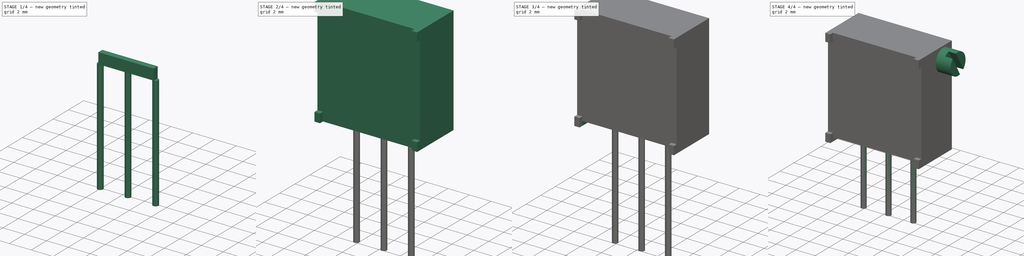
[diagram: build sequence overview — one tinted view per stage of 4, left to right]
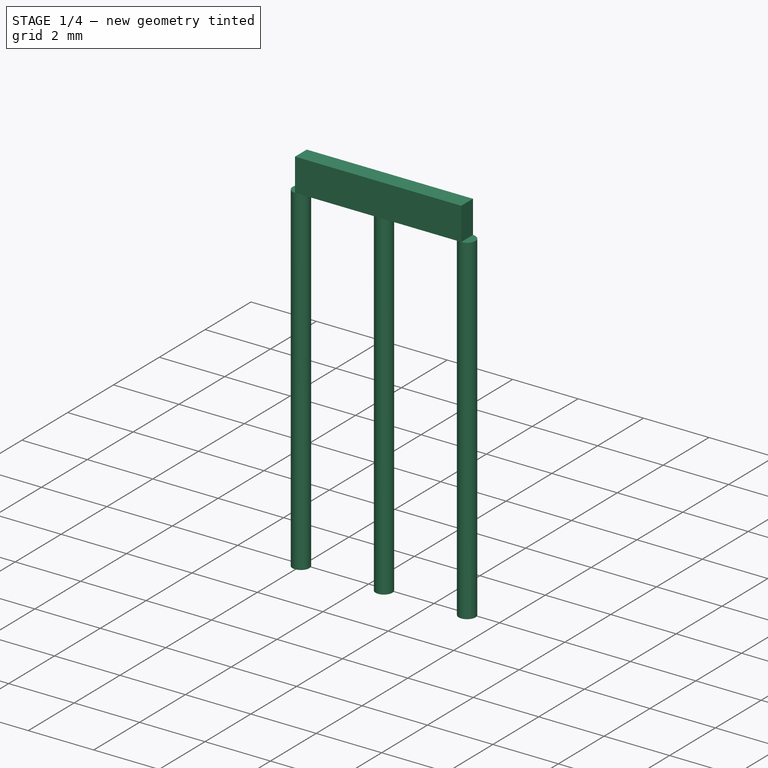
[diagram: stage 1 of 4 — iso view after this stage's code; geometry added in this stage tinted green]
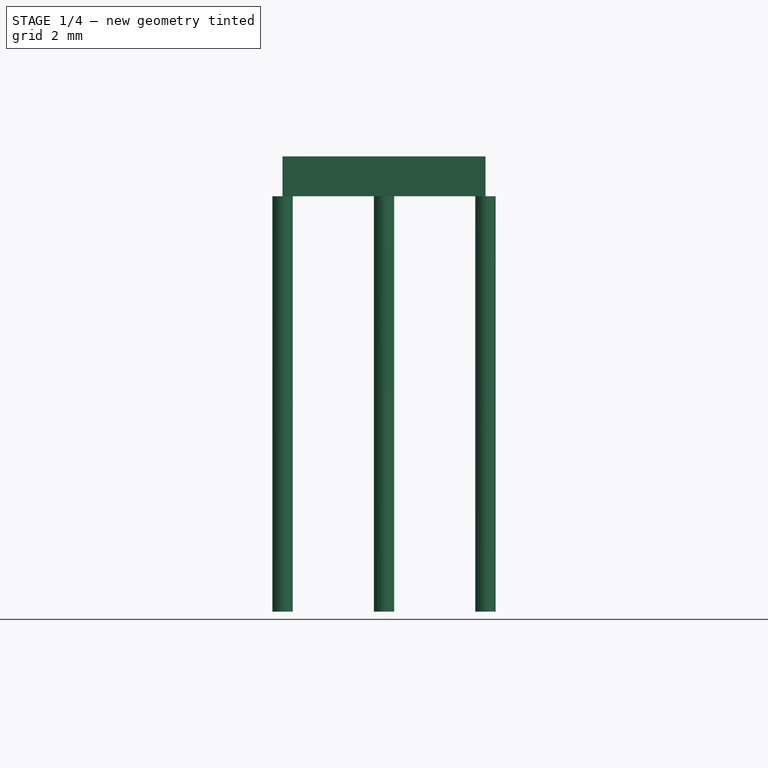
[diagram: stage 1 of 4 — front view after this stage's code; geometry added in this stage tinted green]
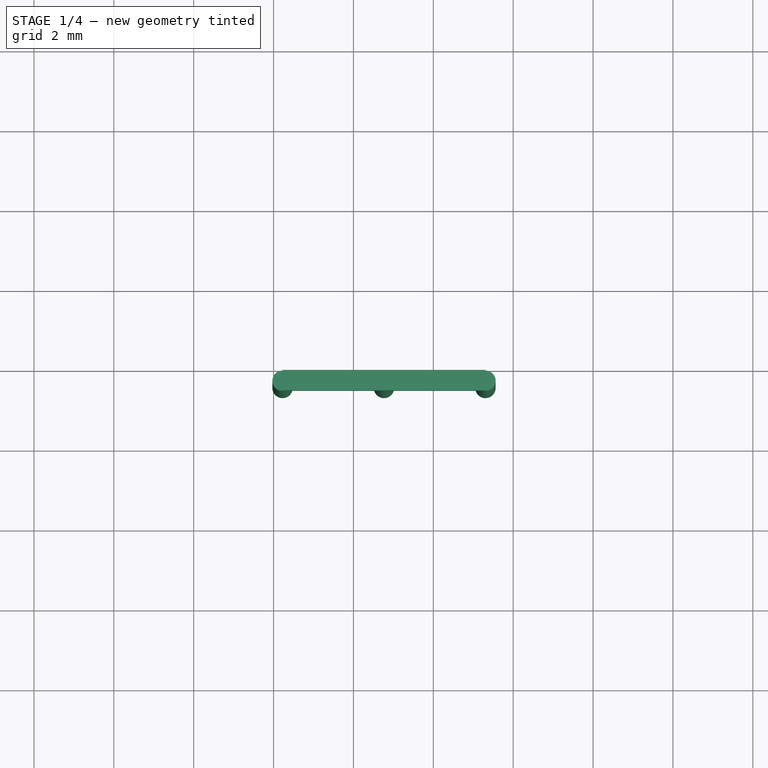
[diagram: stage 1 of 4 — top view after this stage's code; geometry added in this stage tinted green]
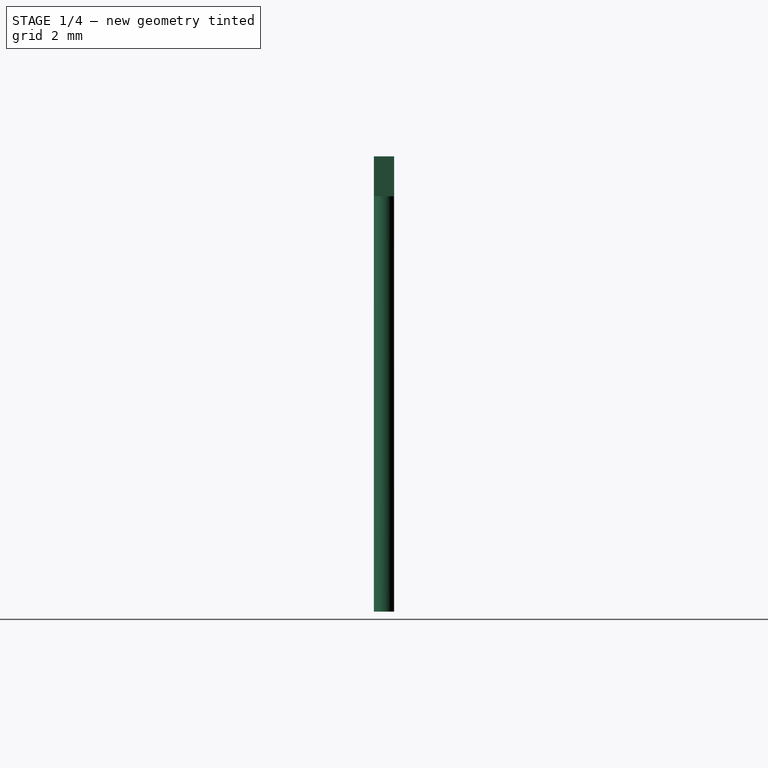
[diagram: stage 1 of 4 — right view after this stage's code; geometry added in this stage tinted green]
FCSTD DOCUMENT  (FreeCAD 0.21R33771 (Git))
Label: BOURNS-3296X_20240509c
License: All rights reserved
LicenseURL: http://fr.wikipedia.org/wiki/<copyright redacted>
objects: Sketcher::SketchObject×7, PartDesign::Pad×4, PartDesign::Pocket×4, PartDesign::Body×3, Spreadsheet::Sheet×1, Part::Part2DObjectPython×1, Part::Compound×1
note: 28 computed .brp shape members not serialized (recipe doc carries the construction recipe); baked Part::Feature solids carry a one-line shape summary decoded from their .brp

FEATURE [PartDesign::Body] Body  label="MainBody"
  Group = -> [Sketch,Pad,Sketch001,Pocket001,Sketch005,Pocket002,ShapeString,Pocket003]
  Origin = -> Origin
  Tip = -> Pocket003
FEATURE [Sketcher::SketchObject] Sketch006  label="BaseSketch"
  FullyConstrained = true
  MapMode = 5
  Support = -> [XY_Plane002]
  expr: Constraints[10] = Spreadsheet.pin_spacing * 2
  expr: Constraints[11] = Spreadsheet.length / 2
  expr: Constraints[12] = Spreadsheet.total_width - Spreadsheet.pin_y
  expr: Constraints[9] = Spreadsheet.pin_diameter
  sketch-geometry (5):
    g0: LineSegment StartX=7.305 StartY=-2.675 StartZ=0 EndX=7.305 EndY=-2.165 EndZ=0
    g1: LineSegment StartX=7.305 StartY=-2.165 StartZ=0 EndX=2.225 EndY=-2.165 EndZ=0
    g2: LineSegment StartX=2.225 StartY=-2.165 StartZ=0 EndX=2.225 EndY=-2.675 EndZ=0
    g3: LineSegment StartX=2.225 StartY=-2.675 StartZ=0 EndX=7.305 EndY=-2.675 EndZ=0
    g4: GeomPoint X=4.765 Y=-2.42 Z=0
  constraints (13):
    c: Coincident(g0,g1)
    c: Coincident(g1,g2)
    c: Coincident(g2,g3)
    c: Coincident(g3,g0)
    c: Horizontal(g1)
    c: Horizontal(g3)
    c: Vertical(g0)
    c: Vertical(g2)
    c: Symmetric(g1,g0,g4)
    c: DistanceY(g0,g0) = 0.51
    c: DistanceX(g1,g1) = 5.08
    c: DistanceX(g-1,g4) = 4.765
    c: DistanceY(g4,g-1) = 2.42
FEATURE [PartDesign::Pad] Pad003  label="BasePad"
  Direction = (0,0,1)
  Length = 1
  Length2 = 10
  Profile = -> Sketch006
  ReferenceAxis = -> Sketch006 [N_Axis]
  Type = 0
FEATURE [Sketcher::SketchObject] Sketch007  label="PinsSketch"
  FullyConstrained = true
  MapMode = 5
  Support = -> [XY_Plane002]
  expr: Constraints[0] = Spreadsheet.pin_spacing
  expr: Constraints[1] = Spreadsheet.pin_spacing
  expr: Constraints[4] = Spreadsheet.pin_diameter
  expr: Constraints[7] = Spreadsheet.length / 2
  expr: Constraints[8] = Spreadsheet.total_width - Spreadsheet.pin_y
  sketch-geometry (3):
    g0: Circle CenterX=4.765 CenterY=-2.42 CenterZ=0 NormalX=0 NormalY=0 NormalZ=1 AngleXU=0 Radius=0.255
    g1: Circle CenterX=2.225 CenterY=-2.42 CenterZ=0 NormalX=0 NormalY=0 NormalZ=1 AngleXU=0 Radius=0.255
    g2: Circle CenterX=7.305 CenterY=-2.42 CenterZ=0 NormalX=0 NormalY=0 NormalZ=1 AngleXU=0 Radius=0.255
  constraints (9):
    c: DistanceX(g1,g0) = 2.54
    c: DistanceX(g0,g2) = 2.54
    c: Horizontal(g1,g0)
    c: Horizontal(g0,g2)
    c: Diameter(g1) = 0.51
    c: Equal(g1,g0)
    c: Equal(g0,g2)
    c: DistanceX(g-1,g0) = 4.765
    c: DistanceY(g0,g-1) = 2.42
FEATURE [PartDesign::Pad] Pad004  label="PinsPad"
  BaseFeature = -> Pad003
  Direction = (0,0,1)
  Length = 10.4
  Length2 = 10
  Profile = -> Sketch007
  ReferenceAxis = -> Sketch007 [N_Axis]
  Reversed = true
  Type = 0
  expr: Length = Spreadsheet.pin_length + Spreadsheet.pin_base_z * 2
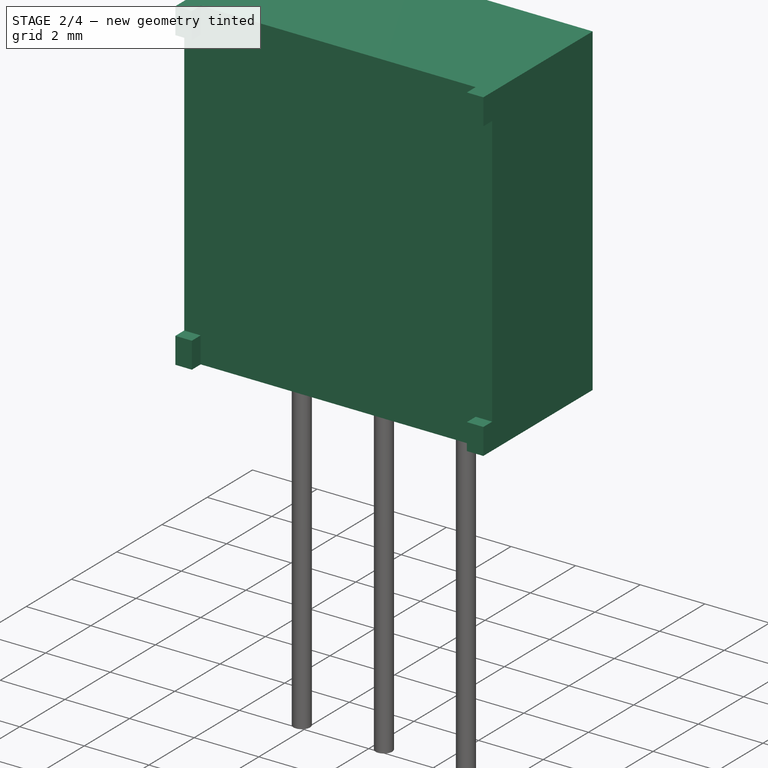
[diagram: stage 2 of 4 — iso view after this stage's code; geometry added in this stage tinted green]
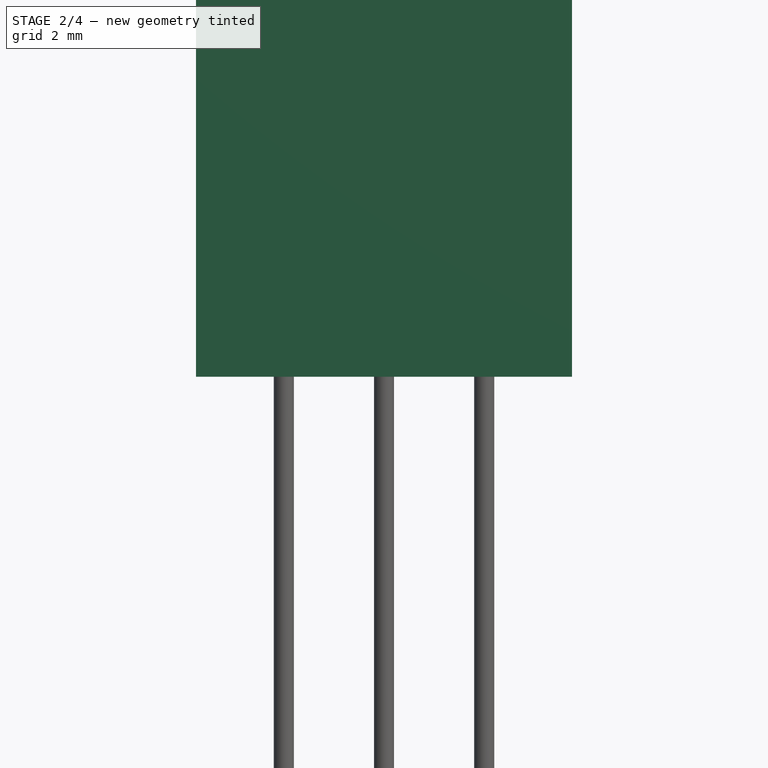
[diagram: stage 2 of 4 — front view after this stage's code; geometry added in this stage tinted green]
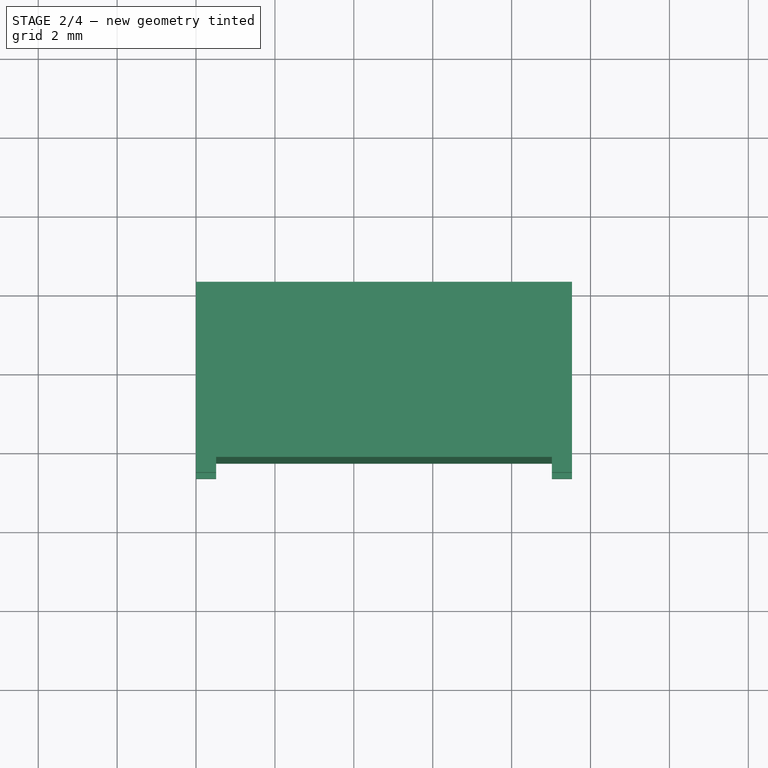
[diagram: stage 2 of 4 — top view after this stage's code; geometry added in this stage tinted green]
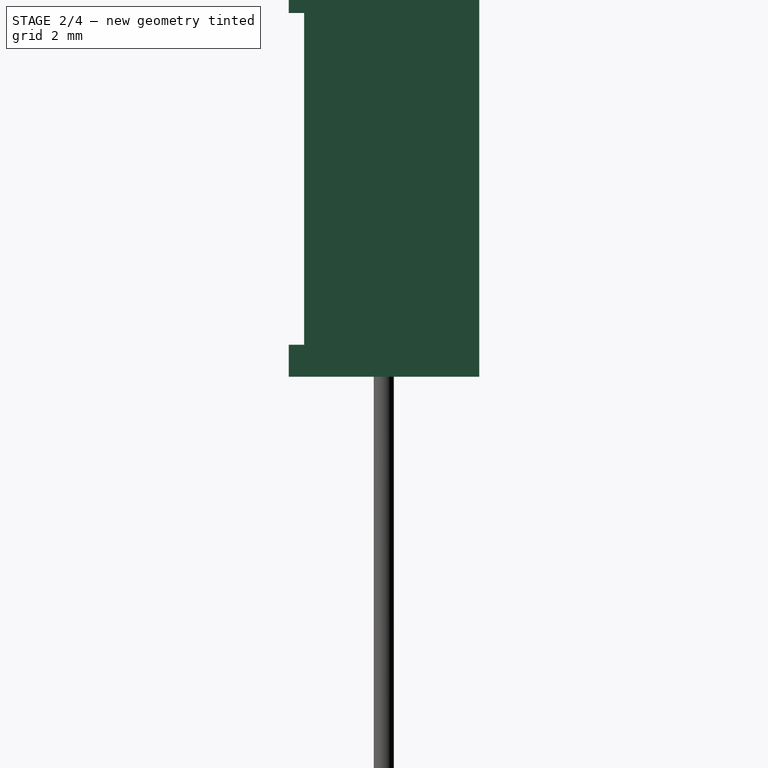
[diagram: stage 2 of 4 — right view after this stage's code; geometry added in this stage tinted green]
FEATURE [Sketcher::SketchObject] Sketch
  FullyConstrained = true
  MapMode = 5
  Placement = pos=(0,0,0) rot=(1,0,0;1.5708rad)
  Support = -> [XZ_Plane]
  expr: Constraints[10] = <<Spreadsheet>>.total_height
  expr: Constraints[9] = <<Spreadsheet>>.length
  sketch-geometry (4):
    g0: LineSegment StartX=0 StartY=0 StartZ=0 EndX=9.53 EndY=0 EndZ=0
    g1: LineSegment StartX=9.53 StartY=0 StartZ=0 EndX=9.53 EndY=10.03 EndZ=0
    g2: LineSegment StartX=9.53 StartY=10.03 StartZ=0 EndX=0 EndY=10.03 EndZ=0
    g3: LineSegment StartX=0 StartY=10.03 StartZ=0 EndX=0 EndY=0 EndZ=0
  constraints (11):
    c: Coincident(g0,g1)
    c: Coincident(g1,g2)
    c: Coincident(g2,g3)
    c: Coincident(g3,g0)
    c: Horizontal(g0)
    c: Horizontal(g2)
    c: Vertical(g1)
    c: Vertical(g3)
    c: Coincident(g0,g-1)
    c: DistanceX(g2,g2) = 9.53
    c: DistanceY(g3,g3) = 10.03
FEATURE [PartDesign::Pad] Pad  label="MainPad"
  AllowMultiFace = false
  Direction = (0,-1,-1.035e-13)
  Length = 4.83
  Length2 = 100
  Placement = pos=(0,0,0) rot=(1,0,0;1.5708rad)
  Profile = -> Sketch
  Type = 0
  expr: Length = <<Spreadsheet>>.total_width
FEATURE [PartDesign::Body] Body001  label="SetScrewBody"
  Group = -> [Sketch002,Pad002,Sketch003,Pocket]
  Origin = -> Origin001
  Placement = pos=(9.53,-1.27,8.76) rot=(0,1,0;1.5708rad)
  Tip = -> Pocket
  expr: .Placement.Base.x = Spreadsheet.length
  expr: .Placement.Base.z = Spreadsheet.total_height - Spreadsheet.screw_x
FEATURE [Spreadsheet::Sheet] Spreadsheet
  cells = A2='body; A3='length; B3(length)=9.53; A4='notch_protrusion; B4(notch_protrusion)==B6 - B5; D4='TBC; A5='width; B5(width)=4.44; D5='TBC; A6='total_width; B6(total_width)=4.83; A8='height; B8(height)==B10 - B9; A9='bottom_notch; B9(bottom_notch)=0.38; A10='total_height; B10(total_height)=10.03; A12='notch_width; B12(notch_width)=0.51; D12='TBC; A13='notch_height; B13(notch_height)=0.81; D13='TBC; A15='Set Screw; A16='screw_diameter; B16(screw_diameter)=2.19; A17='screw_protrusion; B17(screw_protrusion)=1.52; A18='screw_slot_width; B18(screw_slot_width)=0.56; A19='screw_slot_depth; B19(screw_slot_depth)=0.76; A20='screw_y; B20(screw_y)=1.27; A21='screw_x; B21(screw_x)=1.27; A23='Pins; A24='pin_y; B24(pin_y)=2.41; A25='pin_x; B25(pin_x)=0; A26='pin_spacing; B26(pin_spacing)=2.54; A27='pin_diameter; B27(pin_diameter)=0.51; A28='pin_length; B28(pin_length)=6.4; A29='pin_base_z; B29(pin_base_z)=2
FEATURE [PartDesign::Pocket] Pocket001  label="SidePocket001"
  BaseFeature = -> Pad
  Direction = (0,1,1.035e-13)
  Length = 0.39
  Length2 = 5
  Placement = pos=(0,0,0) rot=(1,0,0;1.5708rad)
  Profile = -> Sketch001
  ReferenceAxis = -> Sketch001 [N_Axis]
  Type = 0
  expr: Length = <<Spreadsheet>>.notch_protrusion
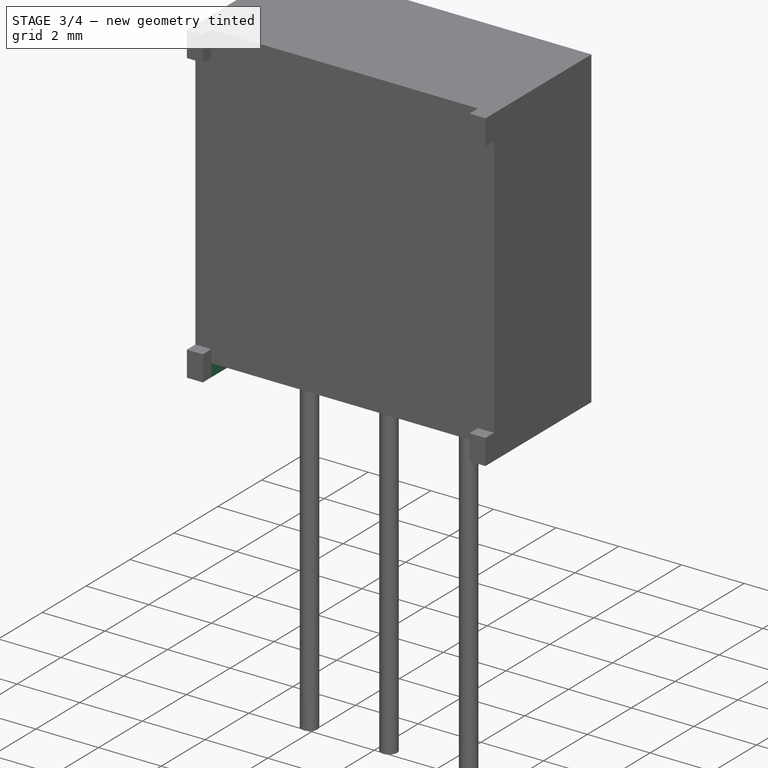
[diagram: stage 3 of 4 — iso view after this stage's code; geometry added in this stage tinted green]
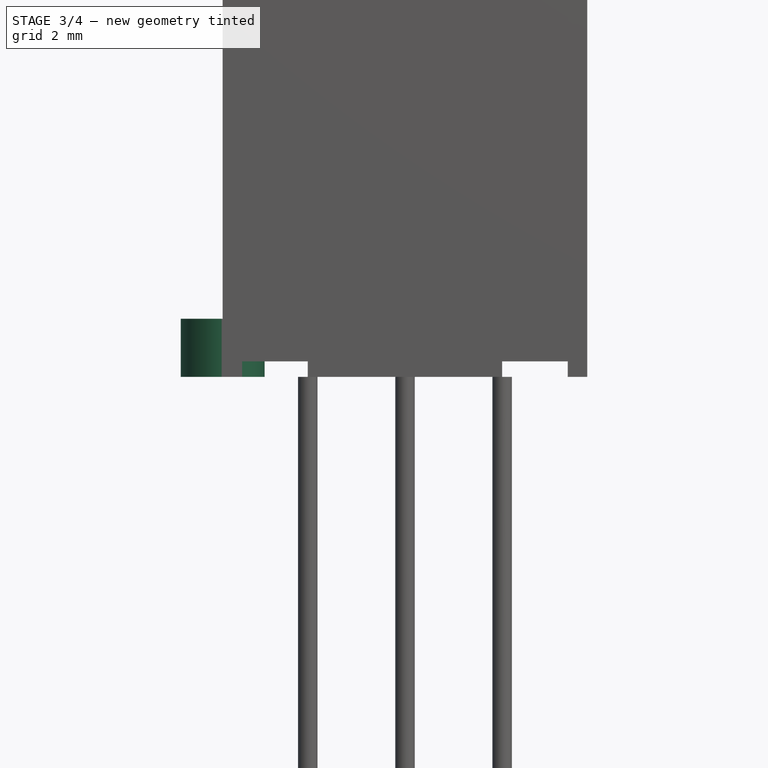
[diagram: stage 3 of 4 — front view after this stage's code; geometry added in this stage tinted green]
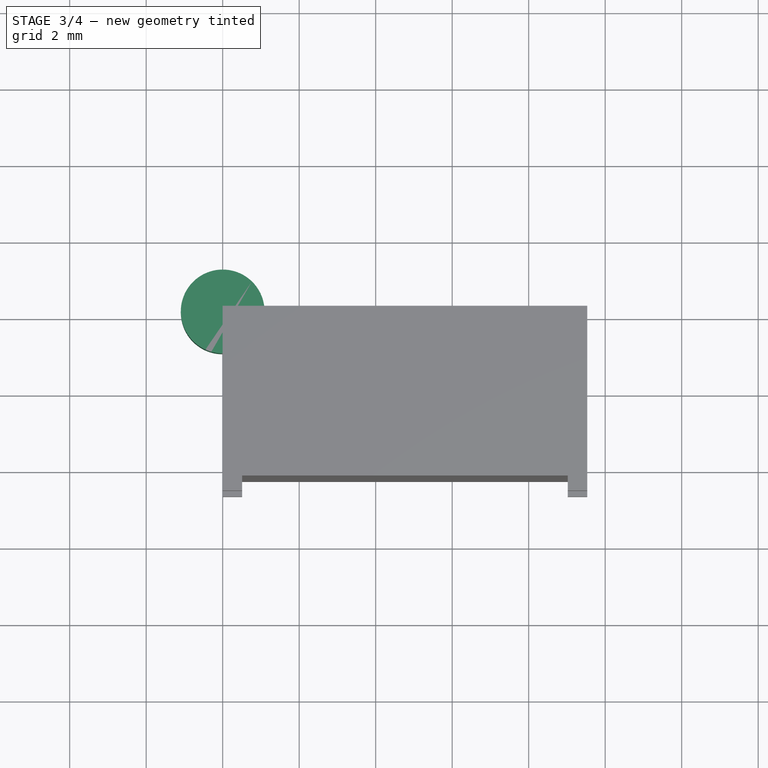
[diagram: stage 3 of 4 — top view after this stage's code; geometry added in this stage tinted green]
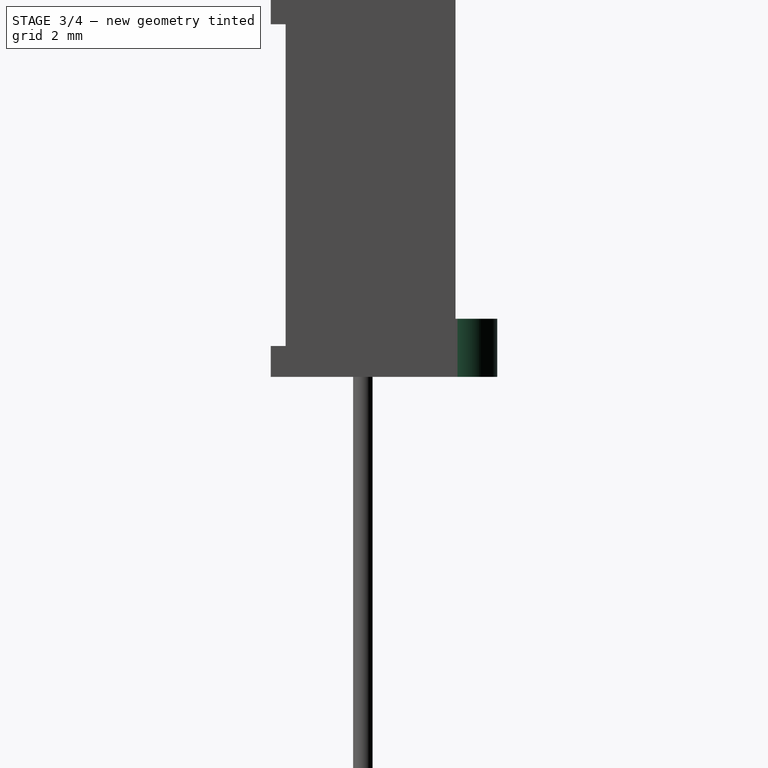
[diagram: stage 3 of 4 — right view after this stage's code; geometry added in this stage tinted green]
FEATURE [Sketcher::SketchObject] Sketch001
  AttachmentOffset = pos=(0,0,4.83) rot=(0,0,1;0rad)
  FullyConstrained = true
  MapMode = 5
  Placement = pos=(0,-4.83,-4.998e-13) rot=(1,0,0;1.5708rad)
  Support = -> [XZ_Plane]
  expr: .AttachmentOffset.Base.z = <<Spreadsheet>>.total_width
  expr: Constraints[28] = <<Spreadsheet>>.notch_width
  expr: Constraints[34] = <<Spreadsheet>>.notch_height
  expr: Constraints[36] = <<Spreadsheet>>.total_height
  sketch-geometry (20):
    g0: LineSegment StartX=0 StartY=10.03 StartZ=0 EndX=0.51 EndY=10.03 EndZ=0
    g1: LineSegment StartX=0.51 StartY=10.03 StartZ=0 EndX=0.51 EndY=9.22 EndZ=0
    g2: LineSegment StartX=0.51 StartY=9.22 StartZ=0 EndX=0 EndY=9.22 EndZ=0
    g3: LineSegment StartX=0 StartY=9.22 StartZ=0 EndX=0 EndY=10.03 EndZ=0
    g4: LineSegment StartX=9.02 StartY=10.03 StartZ=0 EndX=9.53 EndY=10.03 EndZ=0
    g5: LineSegment StartX=9.53 StartY=10.03 StartZ=0 EndX=9.53 EndY=9.22 EndZ=0
    g6: LineSegment StartX=9.53 StartY=9.22 StartZ=0 EndX=9.02 EndY=9.22 EndZ=0
    g7: LineSegment StartX=9.02 StartY=9.22 StartZ=0 EndX=9.02 EndY=10.03 EndZ=0
    g8: LineSegment StartX=9.02 StartY=0.81 StartZ=0 EndX=9.53 EndY=0.81 EndZ=0
    g9: LineSegment StartX=9.53 StartY=0.81 StartZ=0 EndX=9.53 EndY=-9.334e-13 EndZ=0
    g10: LineSegment StartX=9.53 StartY=-9.334e-13 StartZ=0 EndX=9.02 EndY=-9.334e-13 EndZ=0
    g11: LineSegment StartX=9.02 StartY=-9.334e-13 StartZ=0 EndX=9.02 EndY=0.81 EndZ=0
    g12: LineSegment StartX=0 StartY=0.81 StartZ=0 EndX=0.51 EndY=0.81 EndZ=0
    g13: LineSegment StartX=0.51 StartY=0.81 StartZ=0 EndX=0.51 EndY=0 EndZ=0
    g14: LineSegment StartX=0.51 StartY=0 StartZ=0 EndX=0 EndY=0 EndZ=0
    g15: LineSegment StartX=0 StartY=0 StartZ=0 EndX=0 EndY=0.81 EndZ=0
    g16: LineSegment StartX=0 StartY=9.22 StartZ=0 EndX=0 EndY=0.81 EndZ=0
    g17: LineSegment StartX=0.51 StartY=10.03 StartZ=0 EndX=9.02 EndY=10.03 EndZ=0
    g18: LineSegment StartX=9.53 StartY=9.22 StartZ=0 EndX=9.53 EndY=0.81 EndZ=0
    g19: LineSegment StartX=0.51 StartY=0 StartZ=0 EndX=9.02 EndY=-9.334e-13 EndZ=0
  constraints (50):
    c: Coincident(g0,g1)
    c: Coincident(g1,g2)
    c: Coincident(g2,g3)
    c: Coincident(g3,g0)
    c: Horizontal(g0)
    c: Horizontal(g2)
    c: Vertical(g1)
    c: Vertical(g3)
    c: Coincident(g4,g5)
    c: Coincident(g5,g6)
    c: Coincident(g6,g7)
    c: Coincident(g7,g4)
    c: Horizontal(g6)
    c: Vertical(g5)
    c: Vertical(g7)
    c: Coincident(g8,g9)
    c: Coincident(g9,g10)
    c: Coincident(g10,g11)
    c: Coincident(g11,g8)
    c: Horizontal(g8)
    c: Horizontal(g10)
    c: Vertical(g11)
    c: Coincident(g12,g13)
    c: Coincident(g13,g14)
    c: Coincident(g14,g15)
    c: Coincident(g15,g12)
    c: Vertical(g15)
    c: DistanceY(g15,g15) = 0.81
    c: DistanceX(g14,g14) = 0.51
    c: Tangent(g10,g14) = -1.5708
    c: Tangent(g8,g12) = -1.5708
    c: DistanceX(g14,g9) = 9.53
    c: Equal(g10,g14)
    c: PointOnObject(g2,g-2)
    c: DistanceY(g1,g1) = 0.81
    c: Tangent(g1,g13) = -1.5708
    c: DistanceY(g-1,g0) = 10.03
    c: Equal(g6,g10)
    c: Equal(g1,g7)
    c: Tangent(g4,g0) = -1.5708
    c: Tangent(g5,g9) = -1.5708
    c: Coincident(g14,g-1)
    c: Coincident(g16,g2)
    c: Coincident(g16,g12)
    c: Coincident(g17,g0)
    c: Coincident(g17,g4)
    c: Coincident(g18,g5)
    c: Coincident(g18,g8)
    c: Coincident(g19,g13)
    c: Coincident(g19,g11)
FEATURE [Sketcher::SketchObject] Sketch002  label="CylinderSketch"
  FullyConstrained = true
  MapMode = 5
  Support = -> [XY_Plane]
  expr: Constraints[1] = 2.19 / 2
  sketch-geometry (1):
    g0: Circle CenterX=0 CenterY=0 CenterZ=0 NormalX=0 NormalY=0 NormalZ=1 AngleXU=0 Radius=1.095
  constraints (2):
    c: Coincident(g0,g-1)
    c: Radius(g0) = 1.095
FEATURE [PartDesign::Pad] Pad002  label="CylinderPad"
  AllowMultiFace = false
  Direction = (0,0,1)
  Length = 1.52
  Length2 = 100
  Profile = -> Sketch002
  Type = 0
  expr: Length = Spreadsheet.screw_protrusion
FEATURE [Sketcher::SketchObject] Sketch005
  FullyConstrained = true
  MapMode = 5
  Placement = pos=(0,0,0) rot=(1,0,0;1.5708rad)
  Support = -> [XZ_Plane]
  expr: Constraints[10] = <<Spreadsheet>>.notch_height / 2
  expr: Constraints[11] = <<Spreadsheet>>.length - <<Spreadsheet>>.notch_width * 2
  expr: Constraints[9] = <<Spreadsheet>>.notch_width
  sketch-geometry (4):
    g0: LineSegment StartX=0.51 StartY=0 StartZ=0 EndX=9.02 EndY=0 EndZ=0
    g1: LineSegment StartX=9.02 StartY=0 StartZ=0 EndX=9.02 EndY=0.405 EndZ=0
    g2: LineSegment StartX=9.02 StartY=0.405 StartZ=0 EndX=0.51 EndY=0.405 EndZ=0
    g3: LineSegment StartX=0.51 StartY=0.405 StartZ=0 EndX=0.51 EndY=0 EndZ=0
  constraints (12):
    c: Coincident(g0,g1)
    c: Coincident(g1,g2)
    c: Coincident(g2,g3)
    c: Coincident(g3,g0)
    c: Horizontal(g0)
    c: Horizontal(g2)
    c: Vertical(g1)
    c: Vertical(g3)
    c: PointOnObject(g0,g-1)
    c: DistanceX(g-1,g0) = 0.51
    c: DistanceY(g3,g3) = 0.405
    c: DistanceX(g2,g2) = 8.51
FEATURE [PartDesign::Pocket] Pocket002  label="BottomPocket002"
  BaseFeature = -> Pocket001
  Direction = (0,1,1.035e-13)
  Length = 5
  Length2 = 5
  Placement = pos=(0,0,0) rot=(1,0,0;1.5708rad)
  Profile = -> Sketch005
  ReferenceAxis = -> Sketch005 [N_Axis]
  Reversed = true
  Type = 1
FEATURE [Part::Part2DObjectPython] ShapeString  # Draft 2D object (typed FeaturePython)
  FontFile = <userpath>/Dropbox/setup/polices/EuroStyle Normal.ttf
  MakeFace = true
  MapMode = 5
  Placement = pos=(8.38156,0,5) rot=(0,0.707107,0.707107;3.14159rad)
  Size = 4
  String = 3296
  Tracking = 0
FEATURE [PartDesign::Pocket] Pocket003  label="TextPocket003"
  BaseFeature = -> Pocket002
  Direction = (0,-1,1.031e-13)
  Length = 0.1
  Length2 = 5
  Placement = pos=(0,0,0) rot=(1,0,0;1.5708rad)
  Profile = -> ShapeString
  ReferenceAxis = -> ShapeString [N_Axis]
  Type = 0
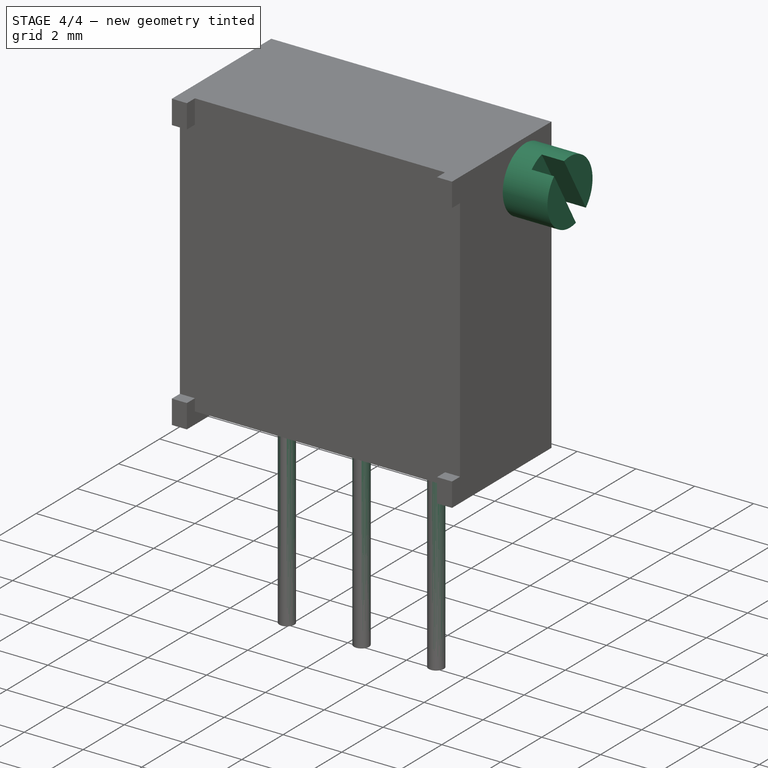
[diagram: stage 4 of 4 — iso view after this stage's code; geometry added in this stage tinted green]
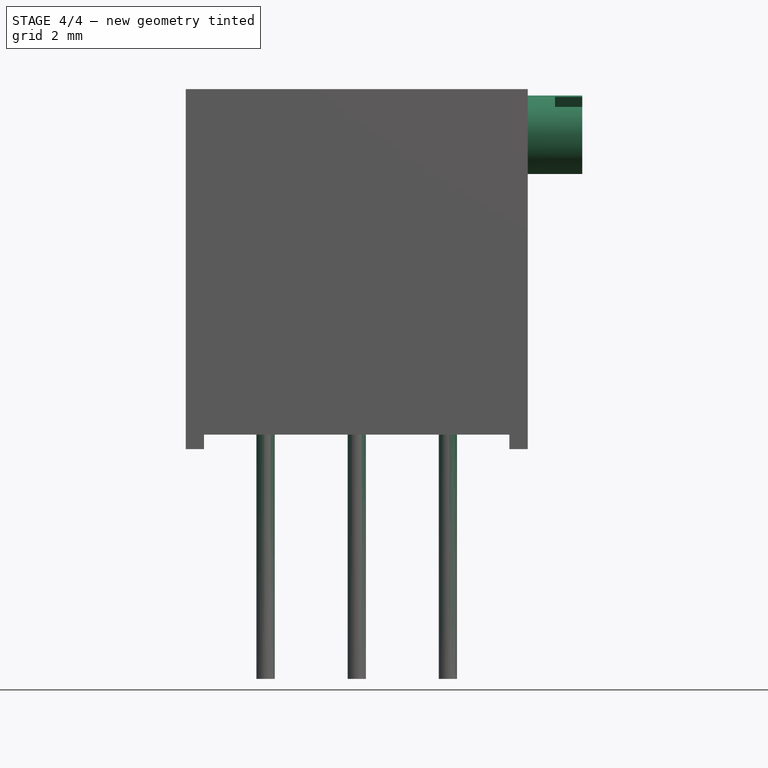
[diagram: stage 4 of 4 — front view after this stage's code; geometry added in this stage tinted green]
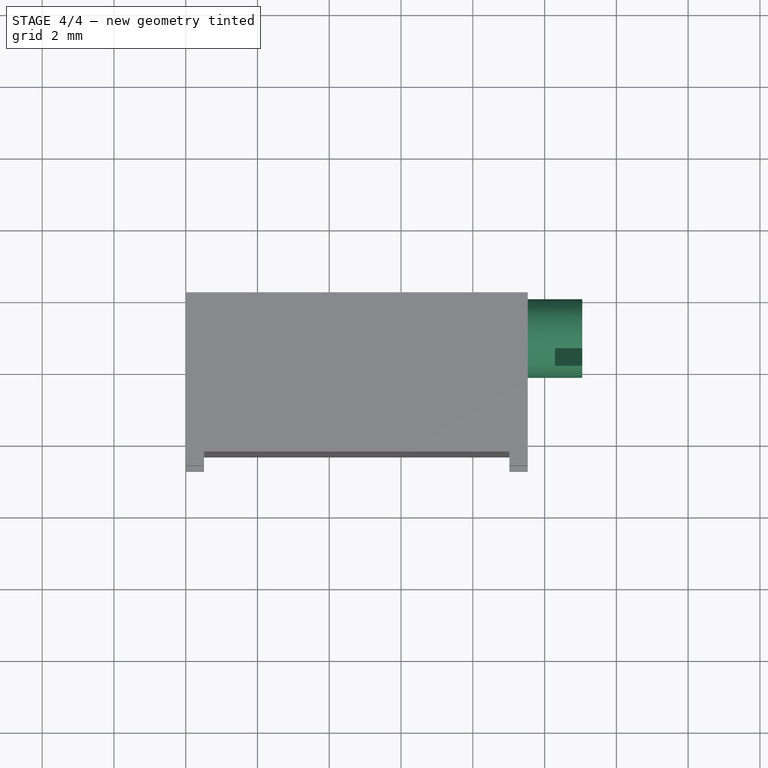
[diagram: stage 4 of 4 — top view after this stage's code; geometry added in this stage tinted green]
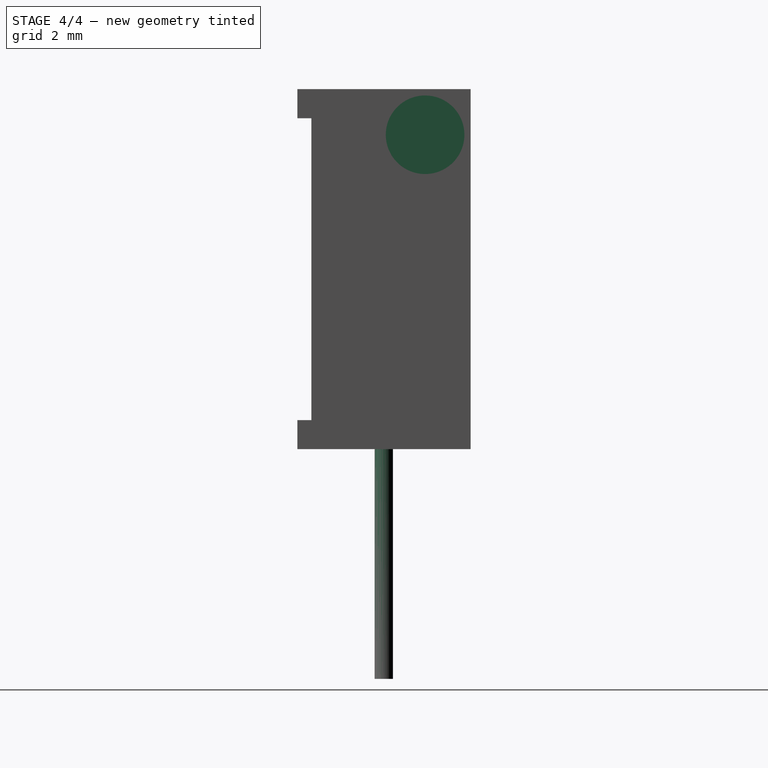
[diagram: stage 4 of 4 — right view after this stage's code; geometry added in this stage tinted green]
FEATURE [Sketcher::SketchObject] Sketch003  label="SlotSketch"
  FullyConstrained = true
  MapMode = 5
  Placement = pos=(0,0,1.52) rot=(0,0,1;0rad)
  Support = -> [Pad002]
  expr: Constraints[8] = Spreadsheet.screw_slot_width
  sketch-geometry (4):
    g0: LineSegment StartX=-1.43904 StartY=-0.507513 StartZ=0 EndX=1.15904 EndY=0.992487 EndZ=0
    g1: LineSegment StartX=1.15904 StartY=0.992487 StartZ=0 EndX=1.43904 EndY=0.507513 EndZ=0
    g2: LineSegment StartX=1.43904 StartY=0.507513 StartZ=0 EndX=-1.15904 EndY=-0.992487 EndZ=0
    g3: LineSegment StartX=-1.15904 StartY=-0.992487 StartZ=0 EndX=-1.43904 EndY=-0.507513 EndZ=0
  constraints (10):
    c: Coincident(g0,g1)
    c: Coincident(g1,g2)
    c: Coincident(g2,g3)
    c: Coincident(g3,g0)
    c: Symmetric(g0,g1,g-1)
    c: Symmetric(g2,g0,g-1)
    c: Angle(g2,g3) = 1.5708
    c: Distance(g0) = 3
    c: Distance(g1) = 0.56
    c: Angle(g-1,g0) = 0.523599
FEATURE [PartDesign::Pocket] Pocket  label="SlotPocket"
  AllowMultiFace = false
  BaseFeature = -> Pad002
  Direction = (0,0,-1)
  Length = 0.76
  Length2 = 100
  Profile = -> Sketch003
  Type = 0
  expr: Length = Spreadsheet.screw_slot_depth
FEATURE [PartDesign::Body] Body002  label="PinsBody"
  Group = -> [Sketch006,Pad003,Sketch007,Pad004]
  Origin = -> Origin002
  Placement = pos=(0,0,4) rot=(0,0,1;0rad)
  Tip = -> Pad004
  expr: .Placement.Base.z = Spreadsheet.pin_base_z * 2
FEATURE [Part::Compound] Compound
  Links = -> [Body,Body001,Body002]
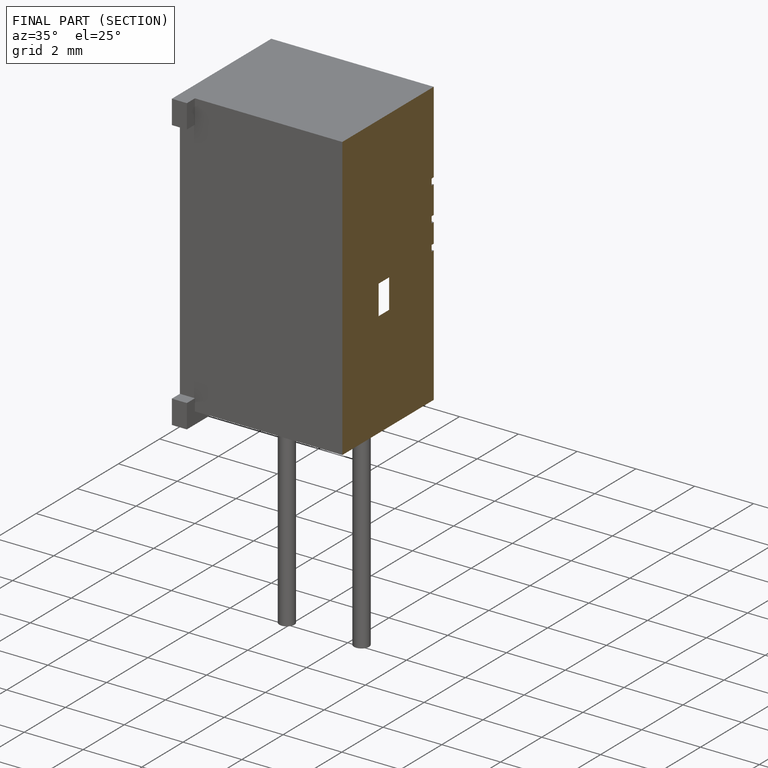
[diagram: finished part — half-section view (interior)]
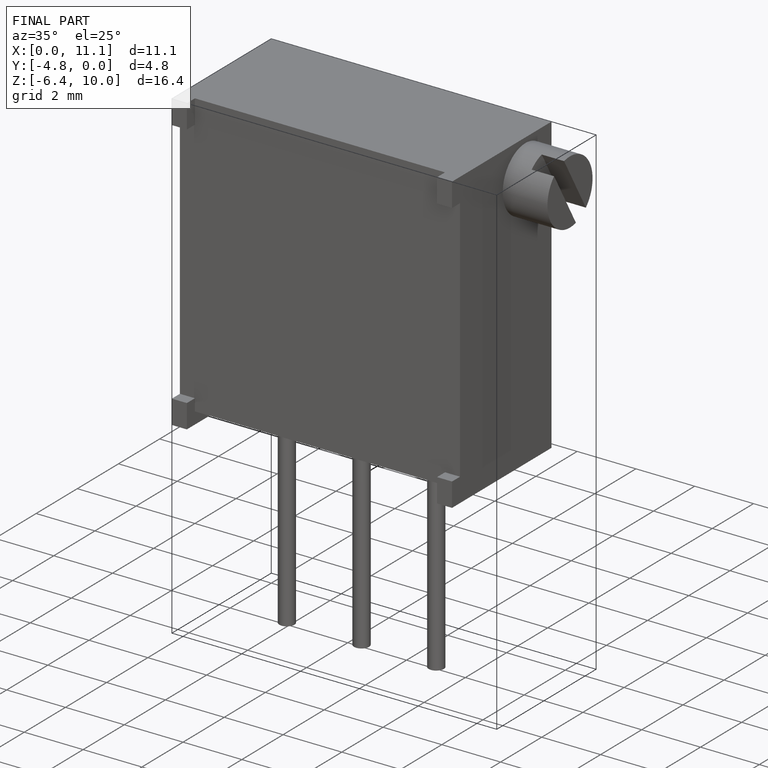
[diagram: finished part — iso view with bounding-box wireframe]
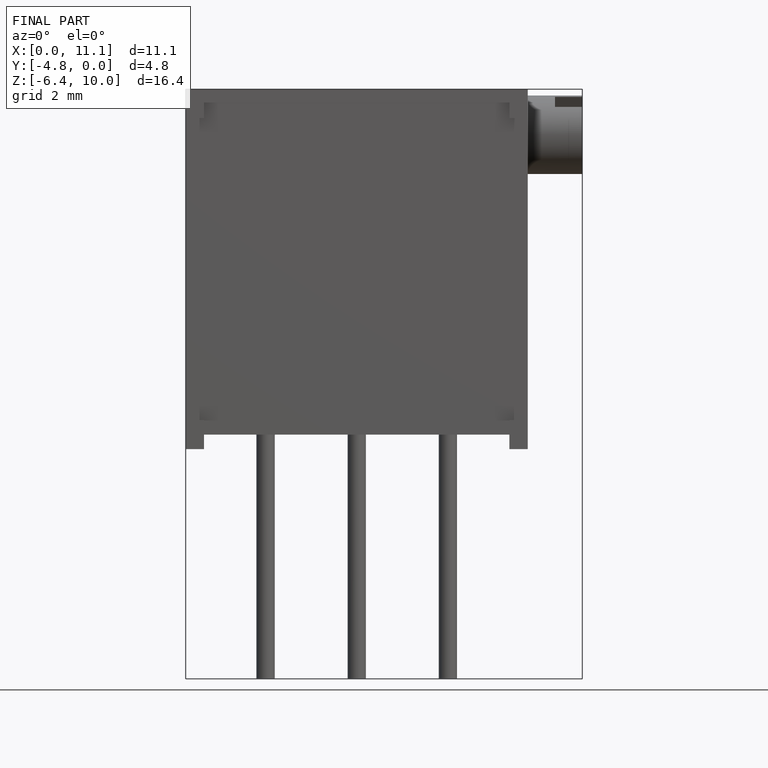
[diagram: finished part — front view with bounding-box wireframe]
